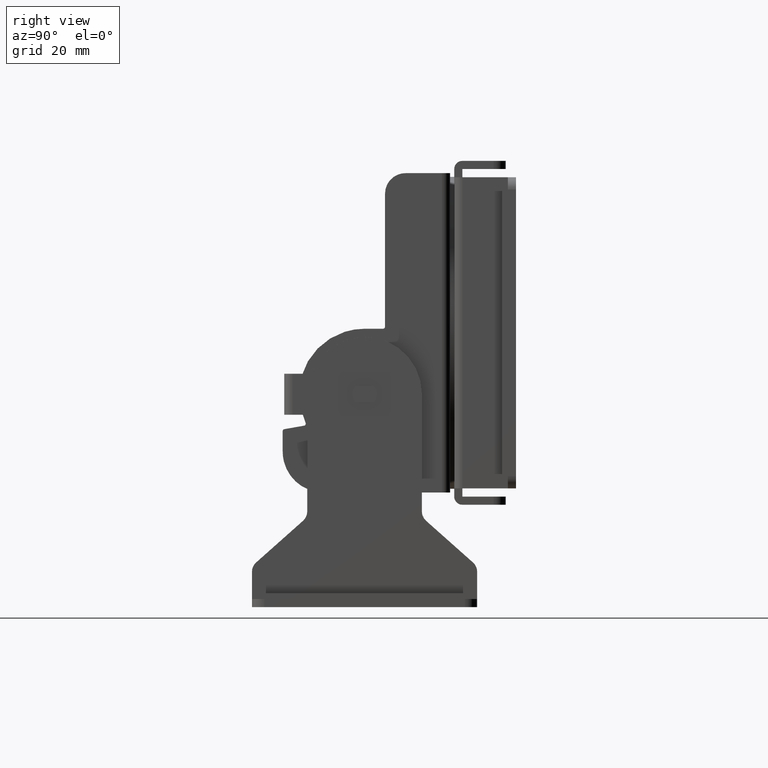
[diagram: clean part render]
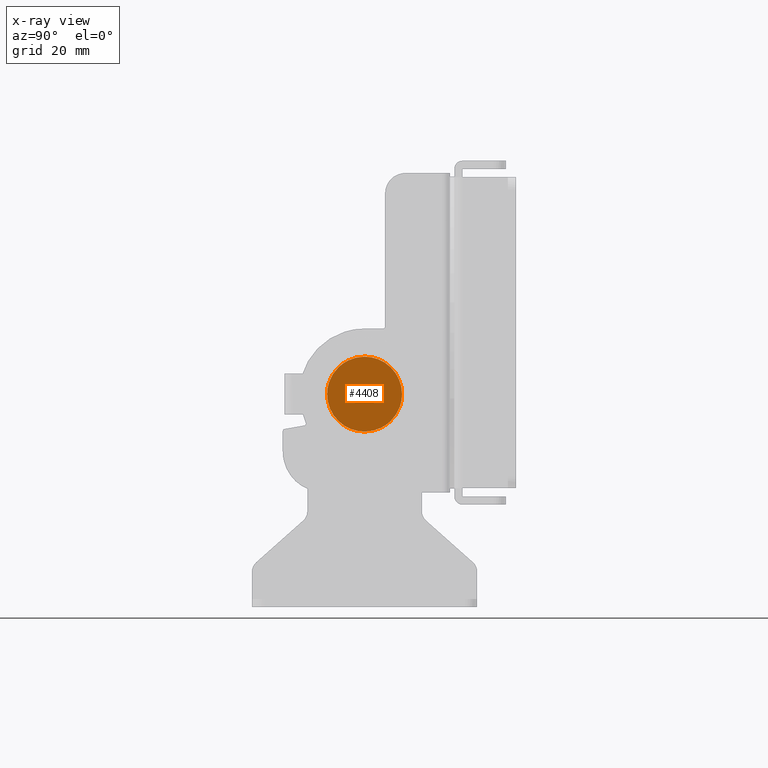
[diagram: x-ray — body ghosted, one internal face saturated and labeled with its STEP entity id]
A machine part, right view, then the same camera in x-ray: the body is ghosted and one INTERNAL B-rep face — a face not visible from any outside direction — is saturated and labeled: STEP entity #4408.
In plain terms, the highlighted face is a freeform B-spline surface patch.
Its self-contained STEP definition (entity closure, byte-faithful):
#4098=CARTESIAN_POINT('',(-44.900000000000013,-30.701555910772061,-21.637175167841502));
#4099=VERTEX_POINT('',#4098);
#4105=CARTESIAN_POINT('',(-44.900000000000013,-27.849999999999959,-14.999998282616620));
#4106=VERTEX_POINT('',#4105);
#4107=CARTESIAN_POINT('',(-44.900000000000013,-30.701555910772061,-21.637175167841502));
#4108=CARTESIAN_POINT('',(-44.900000000000013,-30.112173090258111,-21.078265837288939));
#4109=CARTESIAN_POINT('',(-44.900000000000027,-29.304477243644911,-20.075466936419701));
#4110=CARTESIAN_POINT('',(-44.899999999999963,-28.480159499321172,-18.449374702957950));
#4111=CARTESIAN_POINT('',(-44.899999999999942,-27.979785477531820,-16.856455545239161));
#4112=CARTESIAN_POINT('',(-44.900000000000126,-27.849906167461238,-15.657508847885669));
#4113=CARTESIAN_POINT('',(-44.900000000000013,-27.849999999999959,-14.999998282616620));
#4114=B_SPLINE_CURVE_WITH_KNOTS('',3,(#4107,#4108,#4109,#4110,#4111,#4112,#4113),.UNSPECIFIED.,.F.,.U.,(4,1,1,1,4),(0.000000025720598,2.436659934501204,3.829013838905412,5.453460403071092,7.425990907687839),.UNSPECIFIED.);
#4115=EDGE_CURVE('',#4099,#4106,#4114,.T.);
#4117=CARTESIAN_POINT('',(-44.900000000000013,-37.0,-5.849999999999795));
#4118=VERTEX_POINT('',#4117);
#4119=CARTESIAN_POINT('',(-44.900000000000013,-27.849999999999959,-14.999998282616620));
#4120=CARTESIAN_POINT('',(-44.899999999999793,-27.849805140958299,-14.251400459210570));
#4121=CARTESIAN_POINT('',(-44.900000000000460,-28.002469636147069,-13.016339007687380));
#4122=CARTESIAN_POINT('',(-44.899999999999942,-28.602310968468679,-11.237298759197341));
#4123=CARTESIAN_POINT('',(-44.899999999999281,-29.427931003784948,-9.758713280919455));
#4124=CARTESIAN_POINT('',(-44.900000000000617,-30.646761018592311,-8.328085988476428));
#4125=CARTESIAN_POINT('',(-44.899999999999849,-31.982678873065300,-7.285563472746762));
#4126=CARTESIAN_POINT('',(-44.899999999999920,-33.581776970593317,-6.455852199574323));
#4127=CARTESIAN_POINT('',(-44.899999999999999,-35.203403727167363,-5.963968569736718));
#4128=CARTESIAN_POINT('',(-44.900000000000183,-36.438572070452139,-5.849956595909820));
#4129=CARTESIAN_POINT('',(-44.900000000000013,-37.0,-5.849999999999795));
#4130=B_SPLINE_CURVE_WITH_KNOTS('',3,(#4119,#4120,#4121,#4122,#4123,#4124,#4125,#4126,#4127,#4128,#4129),.UNSPECIFIED.,.F.,.U.,(4,1,1,1,1,1,1,1,4),(0.000000093651474,2.245750332272047,3.705508586287431,5.614433451424613,7.298698954263387,9.319890279317789,10.667367826819630,12.688578085239371,14.372875605358400),.UNSPECIFIED.);
#4131=EDGE_CURVE('',#4106,#4118,#4130,.T.);
#4133=CARTESIAN_POINT('',(-44.900000000000013,-43.298444089227928,-8.362824832158495));
#4134=VERTEX_POINT('',#4133);
#4135=CARTESIAN_POINT('',(-44.900000000000013,-37.0,-5.849999999999795));
#4136=CARTESIAN_POINT('',(-44.900000000000020,-37.506535120505433,-5.849989897514295));
#4137=CARTESIAN_POINT('',(-44.900000000000013,-38.700548252484609,-5.949282741872764));
#4138=CARTESIAN_POINT('',(-44.900000000000126,-40.310796932977190,-6.410191040888080));
#4139=CARTESIAN_POINT('',(-44.899999999999849,-41.929656133661837,-7.229731485675259));
#4140=CARTESIAN_POINT('',(-44.900000000000269,-42.826102526593573,-7.914434308517702));
#4141=CARTESIAN_POINT('',(-44.900000000000013,-43.298444089227928,-8.362824832158495));
#4142=B_SPLINE_CURVE_WITH_KNOTS('',3,(#4135,#4136,#4137,#4138,#4139,#4140,#4141),.UNSPECIFIED.,.F.,.U.,(4,1,1,1,4),(0.000000026726939,1.519630799546172,3.581972839328663,4.993074459559998,6.946887346754997),.UNSPECIFIED.);
#4143=EDGE_CURVE('',#4118,#4134,#4142,.T.);
#4177=CARTESIAN_POINT('',(-44.900000000000013,-46.150000000000027,-15.000001717383430));
#4178=VERTEX_POINT('',#4177);
#4179=CARTESIAN_POINT('',(-44.900000000000013,-43.298444089227928,-8.362824832158495));
#4180=CARTESIAN_POINT('',(-44.899999999999999,-43.775464983869469,-8.815349964200550));
#4181=CARTESIAN_POINT('',(-44.900000000000070,-44.455010646630647,-9.616242850149767));
#4182=CARTESIAN_POINT('',(-44.899999999999928,-45.222439538903927,-10.918344672566031));
#4183=CARTESIAN_POINT('',(-44.900000000000141,-45.920949665870303,-12.602328198971399));
#4184=CARTESIAN_POINT('',(-44.900000000000027,-46.150587433601558,-14.032992698297891));
#4185=CARTESIAN_POINT('',(-44.900000000000013,-46.150000000000027,-15.000001717383430));
#4186=B_SPLINE_CURVE_WITH_KNOTS('',3,(#4179,#4180,#4181,#4182,#4183,#4184,#4185),.UNSPECIFIED.,.F.,.U.,(4,1,1,1,4),(0.000000025723854,1.972530530322207,3.132852689871570,4.525208877004996,7.425990907687889),.UNSPECIFIED.);
#4187=EDGE_CURVE('',#4134,#4178,#4186,.T.);
#4189=CARTESIAN_POINT('',(-44.900000000000013,-37.0,-24.150000000000190));
#4190=VERTEX_POINT('',#4189);
#4191=CARTESIAN_POINT('',(-44.900000000000013,-46.150000000000027,-15.000001717383430));
#4192=CARTESIAN_POINT('',(-44.899999999999913,-46.150066151739978,-15.598869400868930));
#4193=CARTESIAN_POINT('',(-44.900000000000219,-46.046725200613210,-16.646848238962189));
#4194=CARTESIAN_POINT('',(-44.899999999999977,-45.576363726655238,-18.346959706855539));
#4195=CARTESIAN_POINT('',(-44.900000000000020,-44.873438398582827,-19.764987020765169));
#4196=CARTESIAN_POINT('',(-44.900000000000126,-43.836911529571083,-21.144717210876621));
#4197=CARTESIAN_POINT('',(-44.900000000000013,-42.774604475315464,-22.156094160730589));
#4198=CARTESIAN_POINT('',(-44.899999999999849,-41.276773096169222,-23.157060617243172));
#4199=CARTESIAN_POINT('',(-44.900000000000510,-39.395364376992937,-23.936376907965659));
#4200=CARTESIAN_POINT('',(-44.899999999999032,-37.823465403406921,-24.150272065560930));
#4201=CARTESIAN_POINT('',(-44.900000000000013,-37.0,-24.150000000000190));
#4202=B_SPLINE_CURVE_WITH_KNOTS('',3,(#4191,#4192,#4193,#4194,#4195,#4196,#4197,#4198,#4199,#4200,#4201),.UNSPECIFIED.,.F.,.U.,(4,1,1,1,1,1,1,1,4),(0.000000093653579,1.796604115409917,3.144060784764172,5.277540879363425,6.512710952905055,8.309292563048746,9.656773578216036,11.902539874461240,14.372875605358320),.UNSPECIFIED.);
#4203=EDGE_CURVE('',#4178,#4190,#4202,.T.);
#4205=CARTESIAN_POINT('',(-44.900000000000013,-37.0,-24.150000000000190));
#4206=CARTESIAN_POINT('',(-44.899999999999963,-36.348721754087563,-24.150115672239419));
#4207=CARTESIAN_POINT('',(-44.900000000000013,-35.299508577832711,-24.037463602571300));
#4208=CARTESIAN_POINT('',(-44.900000000000027,-33.695974844966187,-23.578542929659712));
#4209=CARTESIAN_POINT('',(-44.899999999999963,-32.185980431030657,-22.858665135986399));
#4210=CARTESIAN_POINT('',(-44.900000000000048,-31.173900686298829,-22.085561198318210));
#4211=CARTESIAN_POINT('',(-44.900000000000013,-30.701555910772061,-21.637175167841502));
#4212=B_SPLINE_CURVE_WITH_KNOTS('',3,(#4205,#4206,#4207,#4208,#4209,#4210,#4211),.UNSPECIFIED.,.F.,.U.,(4,1,1,1,4),(0.000000026726870,1.953812913922897,3.147826725306641,4.993074459560433,6.946887346754991),.UNSPECIFIED.);
#4213=EDGE_CURVE('',#4190,#4099,#4212,.T.);
#4274=CARTESIAN_POINT('',(-44.900000000000013,-39.244972160183899,-13.009999999999989));
#4275=VERTEX_POINT('',#4274);
#4276=CARTESIAN_POINT('',(-44.900000000000013,-34.755027839816449,-13.009999999999989));
#4277=VERTEX_POINT('',#4276);
#4278=CARTESIAN_POINT('',(-44.900000000000013,-39.244972160183899,-13.009999999999989));
#4279=CARTESIAN_POINT('',(-44.900000000000013,-34.755027839816449,-13.009999999999989));
#4280=QUASI_UNIFORM_CURVE('',1,(#4278,#4279),.UNSPECIFIED.,.F.,.U.);
#4281=EDGE_CURVE('',#4275,#4277,#4280,.T.);
#4311=CARTESIAN_POINT('',(-44.900000000000013,-39.244972160183949,-16.989999999999998));
#4312=VERTEX_POINT('',#4311);
#4313=CARTESIAN_POINT('',(-44.900000000000013,-39.244972160183949,-16.989999999999998));
#4314=CARTESIAN_POINT('',(-44.900000000000013,-39.516031913923250,-16.684973679914361));
#4315=CARTESIAN_POINT('',(-44.900000000000070,-39.826392981227322,-16.142891500118580));
#4316=CARTESIAN_POINT('',(-44.899999999999928,-39.996603417070183,-15.363847814245259));
#4317=CARTESIAN_POINT('',(-44.900000000000063,-40.011629266941881,-14.704043239554039));
#4318=CARTESIAN_POINT('',(-44.899999999999920,-39.840286027195873,-13.875206413883850));
#4319=CARTESIAN_POINT('',(-44.899999999999977,-39.500873452180777,-13.298112974650779));
#4320=CARTESIAN_POINT('',(-44.900000000000013,-39.244972160183899,-13.009999999999989));
#4321=B_SPLINE_CURVE_WITH_KNOTS('',3,(#4313,#4314,#4315,#4316,#4317,#4318,#4319,#4320),.UNSPECIFIED.,.F.,.U.,(4,1,1,1,1,4),(0.000000112717593,1.223915840081034,1.835895837344919,2.379791931428483,3.195763731598359,4.351679605419843),.UNSPECIFIED.);
#4322=EDGE_CURVE('',#4312,#4275,#4321,.T.);
#4339=CARTESIAN_POINT('',(-44.900000000000013,-34.755027839816449,-16.989999999999998));
#4340=VERTEX_POINT('',#4339);
#4341=CARTESIAN_POINT('',(-44.900000000000013,-34.755027839816449,-16.989999999999998));
#4342=CARTESIAN_POINT('',(-44.900000000000013,-39.244972160183949,-16.989999999999998));
#4343=QUASI_UNIFORM_CURVE('',1,(#4341,#4342),.UNSPECIFIED.,.F.,.U.);
#4344=EDGE_CURVE('',#4340,#4312,#4343,.T.);
#4370=CARTESIAN_POINT('',(-44.900000000000013,-34.755027839816449,-13.009999999999989));
#4371=CARTESIAN_POINT('',(-44.900000000000013,-34.619714163303151,-13.162628085224570));
#4372=CARTESIAN_POINT('',(-44.900000000000041,-34.340414793720868,-13.551102854647850));
#4373=CARTESIAN_POINT('',(-44.899999999999991,-34.091076032200050,-14.165815966265839));
#4374=CARTESIAN_POINT('',(-44.900000000000027,-33.990494607644351,-14.795064172883571));
#4375=CARTESIAN_POINT('',(-44.900000000000027,-34.002865505335308,-15.341103498708060));
#4376=CARTESIAN_POINT('',(-44.900000000000027,-34.113495977803140,-15.875961103397490));
#4377=CARTESIAN_POINT('',(-44.899999999999913,-34.344438731870909,-16.445388734985428));
#4378=CARTESIAN_POINT('',(-44.900000000000183,-34.589599700105502,-16.803478514028651));
#4379=CARTESIAN_POINT('',(-44.900000000000013,-34.755027839816449,-16.989999999999998));
#4380=B_SPLINE_CURVE_WITH_KNOTS('',3,(#4370,#4371,#4372,#4373,#4374,#4375,#4376,#4377,#4378,#4379),.UNSPECIFIED.,.F.,.U.,(4,1,1,1,1,1,1,4),(0.000000112712391,0.611939546862792,1.427906136256835,1.971885887612528,2.515784091586664,3.059766456371566,3.603748069323730,4.351679605420172),.UNSPECIFIED.);
#4381=EDGE_CURVE('',#4277,#4340,#4380,.T.);
#4389=CARTESIAN_POINT('',(-44.900000000000013,-47.064084964531091,-4.935915035468725));
#4390=CARTESIAN_POINT('',(-44.900000000000013,-47.064084964531091,-25.064085455375508));
#4391=CARTESIAN_POINT('',(-44.900000000000013,-26.935914544624652,-4.935915035468725));
#4392=CARTESIAN_POINT('',(-44.900000000000013,-26.935914544624652,-25.064085455375508));
#4393=B_SPLINE_SURFACE_WITH_KNOTS('',1,1,((#4389,#4391),(#4390,#4392)),.UNSPECIFIED.,.F.,.F.,.U.,(2,2),(2,2),(0.0,20.128170419906791),(0.0,20.128170419906439),.UNSPECIFIED.);
#4394=ORIENTED_EDGE('',*,*,#4203,.F.);
#4395=ORIENTED_EDGE('',*,*,#4187,.F.);
#4396=ORIENTED_EDGE('',*,*,#4143,.F.);
#4397=ORIENTED_EDGE('',*,*,#4131,.F.);
#4398=ORIENTED_EDGE('',*,*,#4115,.F.);
#4399=ORIENTED_EDGE('',*,*,#4213,.F.);
#4400=EDGE_LOOP('',(#4394,#4395,#4396,#4397,#4398,#4399));
#4401=FACE_OUTER_BOUND('',#4400,.T.);
#4402=ORIENTED_EDGE('',*,*,#4381,.F.);
#4403=ORIENTED_EDGE('',*,*,#4281,.F.);
#4404=ORIENTED_EDGE('',*,*,#4322,.F.);
#4405=ORIENTED_EDGE('',*,*,#4344,.F.);
#4406=EDGE_LOOP('',(#4402,#4403,#4404,#4405));
#4407=FACE_BOUND('',#4406,.T.);
#4408=ADVANCED_FACE('',(#4401,#4407),#4393,.F.);